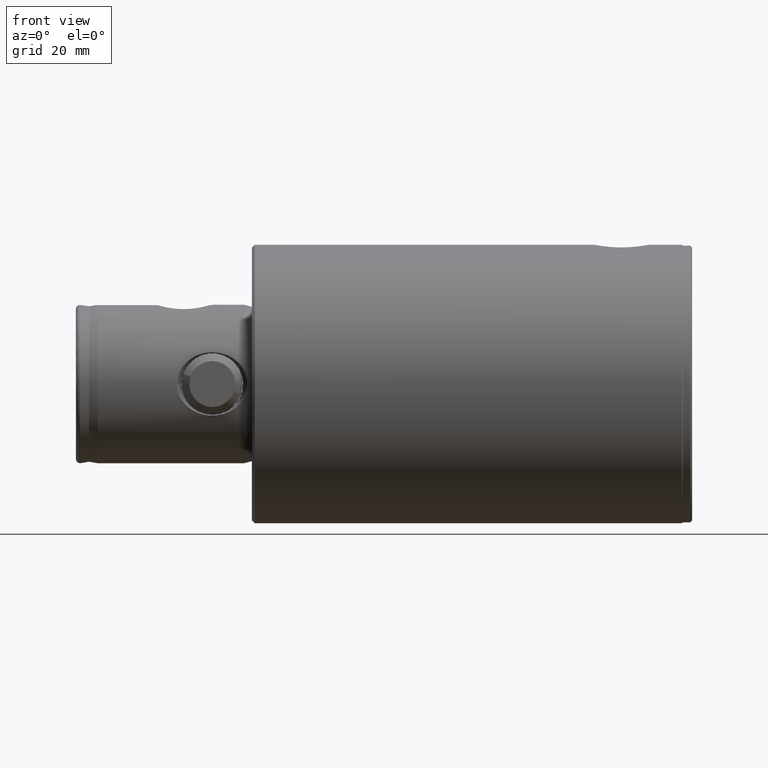
[diagram: clean part render]
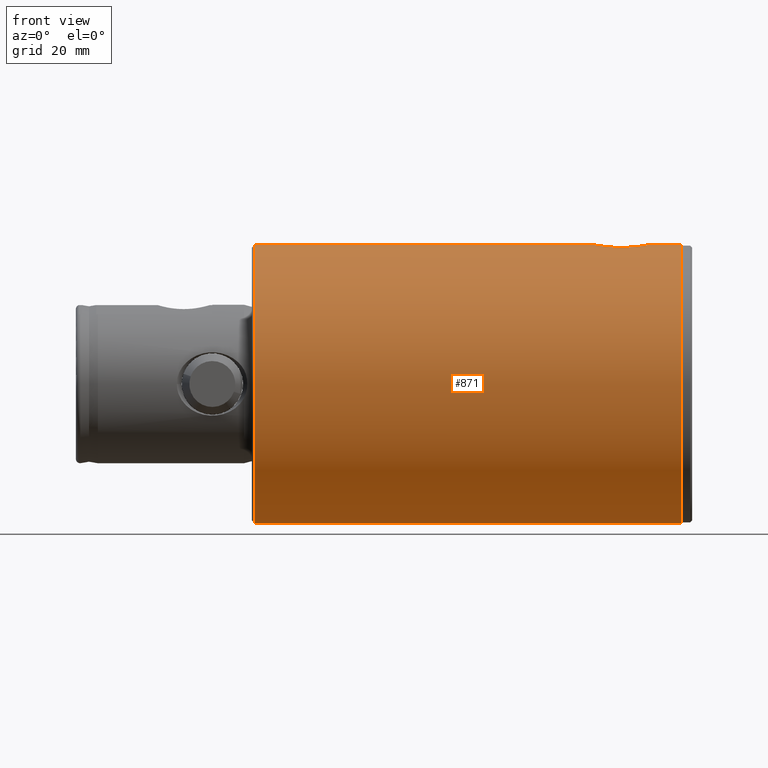
[diagram: same view with one face highlighted and labeled with its STEP entity id]
A machine part, front view. The second image highlights one B-rep face of the part: STEP entity #871.
In plain terms, the highlighted cylindrical surface (partial cylindrical patch) has radius 31.635 mm, axis along (1, 0, -0).
Its self-contained STEP definition (entity closure, byte-faithful):
#169 = CARTESIAN_POINT ( 'NONE',  ( 31.63500000000000500, 3.874170149102652900E-015, 100.0000000000000000 ) ) ;
#171 = VERTEX_POINT ( 'NONE', #1270 ) ;
#215 = CARTESIAN_POINT ( 'NONE',  ( 31.25609711018817500, -4.886870379722262600, 12.29441295156284400 ) ) ;
#228 = CARTESIAN_POINT ( 'NONE',  ( 31.07006094528549800, -5.952392331260933000, 17.64798982543387500 ) ) ;
#251 = EDGE_CURVE ( 'NONE', #171, #3950, #691, .T. ) ;
#279 = CARTESIAN_POINT ( 'NONE',  ( 31.37439714490501100, -4.062481795231411400, 20.68489261969218900 ) ) ;
#295 = CARTESIAN_POINT ( 'NONE',  ( 31.63500000000000500, 3.874170848840997900E-015, 22.19999999999999900 ) ) ;
#347 = CARTESIAN_POINT ( 'NONE',  ( 31.46765019519722600, -3.253952408386179900, 21.27248445754228000 ) ) ;
#385 = ORIENTED_EDGE ( 'NONE', *, *, #4406, .T. ) ;
#457 = VERTEX_POINT ( 'NONE', #3631 ) ;
#620 = CARTESIAN_POINT ( 'NONE',  ( 31.13476887076352600, -5.604066680910715800, 18.59119515908194100 ) ) ;
#691 = B_SPLINE_CURVE_WITH_KNOTS ( 'NONE', 3,
 ( #4341, #4039, #3338, #4431, #1361, #4491, #4057, #3298, #2964, #4445, #2145, #2192, #215, #4836, #2533, #2916, #2588, #3313, #991, #1774, #4457, #4854, #2549, #228, #2933, #620, #3324, #1789, #3420, #3407, #1874, #279, #4968, #347, #2281, #2229, #2651, #4920, #1477, #4561, #2669, #2245, #2213, #295 ),
 .UNSPECIFIED., .F., .F.,
 ( 4, 2, 2, 2, 2, 2, 2, 2, 2, 2, 2, 2, 2, 2, 2, 2, 2, 2, 2, 2, 2, 4 ),
 ( 8.025716114139253500E-019, 0.001204603437407816200, 0.001806905156111723300, 0.002409206874815630600, 0.003613810312223445300, 0.004818413749631259500, 0.006023017187039075500, 0.007227620624446889700, 0.007829922343150797300, 0.008432224061854704000, 0.009636827499262513900, 0.01084143093667032400, 0.01204603437407813400, 0.01264833609278203900, 0.01325063781148594500, 0.01445524124889375200, 0.01565984468630156000, 0.01626214640500546800, 0.01686444812370937700, 0.01806905156111719400, 0.01867135327982110500, 0.01927365499852501400 ),
 .UNSPECIFIED. ) ;
#860 = DIRECTION ( 'NONE',  ( -1.000000000000000000, 0.0000000000000000000, 0.0000000000000000000 ) ) ;
#871 = ADVANCED_FACE ( 'NONE', ( #4331 ), #3613, .T. ) ;
#881 = EDGE_CURVE ( 'NONE', #1006, #457, #4399, .T. ) ;
#922 = CARTESIAN_POINT ( 'NONE',  ( 0.0000000000000000000, 0.0000000000000000000, 99.36500000000000900 ) ) ;
#991 = CARTESIAN_POINT ( 'NONE',  ( 31.06238335323845600, -5.991927037956066300, 14.64988679874739800 ) ) ;
#1006 = VERTEX_POINT ( 'NONE', #3855 ) ;
#1162 = ORIENTED_EDGE ( 'NONE', *, *, #251, .T. ) ;
#1216 = VECTOR ( 'NONE', #2118, 1000.000000000000000 ) ;
#1230 = CARTESIAN_POINT ( 'NONE',  ( 0.0000000000000000000, 0.0000000000000000000, 100.0000000000000000 ) ) ;
#1270 = CARTESIAN_POINT ( 'NONE',  ( 31.63500000000000500, 5.340185186912870700E-016, 9.900000000000000400 ) ) ;
#1361 = CARTESIAN_POINT ( 'NONE',  ( 31.59543492066755400, -1.593505913445418400, 10.10659071127523800 ) ) ;
#1477 = CARTESIAN_POINT ( 'NONE',  ( 31.59696258510547700, -1.600493870638747500, 22.00175022956920800 ) ) ;
#1563 = CARTESIAN_POINT ( 'NONE',  ( -31.63500000000000500, 0.0000000000000000000, 100.0000000000000000 ) ) ;
#1630 = AXIS2_PLACEMENT_3D ( 'NONE', #3222, #4371, #2241 ) ;
#1637 = DIRECTION ( 'NONE',  ( 0.0000000000000000000, 0.0000000000000000000, -1.000000000000000000 ) ) ;
#1774 = CARTESIAN_POINT ( 'NONE',  ( 31.03933184757990600, -6.110613741904253400, 15.24568282668217400 ) ) ;
#1789 = CARTESIAN_POINT ( 'NONE',  ( 31.18348704038253100, -5.326600959888283500, 19.13065036124437400 ) ) ;
#1874 = CARTESIAN_POINT ( 'NONE',  ( 31.29503887849007500, -4.634338802526856100, 20.11311355933571200 ) ) ;
#1966 = ORIENTED_EDGE ( 'NONE', *, *, #3700, .T. ) ;
#2118 = DIRECTION ( 'NONE',  ( 0.0000000000000000000, 0.0000000000000000000, -1.000000000000000000 ) ) ;
#2145 = CARTESIAN_POINT ( 'NONE',  ( 31.37379658249251300, -4.066900014080239600, 11.41934727300112200 ) ) ;
#2192 = CARTESIAN_POINT ( 'NONE',  ( 31.29525941347940300, -4.632658628387614100, 11.98538508153431800 ) ) ;
#2213 = CARTESIAN_POINT ( 'NONE',  ( 31.63499999999999800, -0.2009505536041552900, 22.20000000000000300 ) ) ;
#2229 = CARTESIAN_POINT ( 'NONE',  ( 31.51787815108326300, -2.725542977868396400, 21.56677004322249000 ) ) ;
#2241 = DIRECTION ( 'NONE',  ( 1.000000000000000000, 0.0000000000000000000, 0.0000000000000000000 ) ) ;
#2245 = CARTESIAN_POINT ( 'NONE',  ( 31.63308556009322800, -0.4023440089630430600, 22.19017583239642400 ) ) ;
#2281 = CARTESIAN_POINT ( 'NONE',  ( 31.48503807696849300, -3.081818450620238600, 21.37594886113464900 ) ) ;
#2503 = VECTOR ( 'NONE', #3083, 1000.000000000000000 ) ;
#2533 = CARTESIAN_POINT ( 'NONE',  ( 31.14886242980077900, -5.526837676816006400, 13.32293095349614900 ) ) ;
#2549 = CARTESIAN_POINT ( 'NONE',  ( 31.03947014768490200, -6.109906264419069400, 16.85844999069621200 ) ) ;
#2588 = CARTESIAN_POINT ( 'NONE',  ( 31.09417945302777800, -5.824842870027199000, 14.06649246427985000 ) ) ;
#2608 = CARTESIAN_POINT ( 'NONE',  ( -31.63500000000000500, 0.0000000000000000000, 99.36500000000000900 ) ) ;
#2651 = CARTESIAN_POINT ( 'NONE',  ( 31.53328817192267800, -2.541595959133240400, 21.65386357896827400 ) ) ;
#2669 = CARTESIAN_POINT ( 'NONE',  ( 31.62537399128934000, -0.8060413542789127700, 22.15032272010963500 ) ) ;
#2837 = AXIS2_PLACEMENT_3D ( 'NONE', #922, #3283, #3265 ) ;
#2916 = CARTESIAN_POINT ( 'NONE',  ( 31.10684208921751900, -5.757055265551832300, 13.87769713392675900 ) ) ;
#2933 = CARTESIAN_POINT ( 'NONE',  ( 31.09244529378339200, -5.835902214133160000, 18.03184009183793500 ) ) ;
#2964 = CARTESIAN_POINT ( 'NONE',  ( 31.48614300239824400, -3.083641083394389200, 10.71380521691460300 ) ) ;
#2996 = CARTESIAN_POINT ( 'NONE',  ( 31.63500000000000500, 3.874170149102652900E-015, 99.36500000000000900 ) ) ;
#3083 = DIRECTION ( 'NONE',  ( 0.0000000000000000000, 0.0000000000000000000, -1.000000000000000000 ) ) ;
#3222 = CARTESIAN_POINT ( 'NONE',  ( 0.0000000000000000000, 0.0000000000000000000, 2.365685424949242500 ) ) ;
#3258 = CARTESIAN_POINT ( 'NONE',  ( 31.63500000000000500, 3.874170149102652900E-015, 100.0000000000000000 ) ) ;
#3265 = DIRECTION ( 'NONE',  ( 1.000000000000000000, 0.0000000000000000000, 0.0000000000000000000 ) ) ;
#3283 = DIRECTION ( 'NONE',  ( -0.0000000000000000000, -0.0000000000000000000, -1.000000000000000000 ) ) ;
#3298 = CARTESIAN_POINT ( 'NONE',  ( 31.51912987192450500, -2.730747091259799300, 10.52479086530721600 ) ) ;
#3313 = CARTESIAN_POINT ( 'NONE',  ( 31.07196948833892900, -5.942179939494876900, 14.45200307527518500 ) ) ;
#3323 = LINE ( 'NONE', #3258, #1216 ) ;
#3324 = CARTESIAN_POINT ( 'NONE',  ( 31.15040210047902400, -5.516791709142182800, 18.77545292970873800 ) ) ;
#3338 = CARTESIAN_POINT ( 'NONE',  ( 31.62713939424492800, -0.8077787179375980300, 9.940077896677243200 ) ) ;
#3407 = CARTESIAN_POINT ( 'NONE',  ( 31.25563113712986800, -4.889738710152639300, 19.80140497505248800 ) ) ;
#3420 = CARTESIAN_POINT ( 'NONE',  ( 31.20099893783314100, -5.223369567607385000, 19.30252691692113100 ) ) ;
#3613 = CYLINDRICAL_SURFACE ( 'NONE', #3917, 31.63500000000000500 ) ;
#3631 = CARTESIAN_POINT ( 'NONE',  ( 31.63500000000000500, 3.874170149102652900E-015, 2.365685424949242500 ) ) ;
#3648 = ORIENTED_EDGE ( 'NONE', *, *, #4877, .F. ) ;
#3689 = ORIENTED_EDGE ( 'NONE', *, *, #881, .T. ) ;
#3700 = EDGE_CURVE ( 'NONE', #4672, #1006, #3863, .T. ) ;
#3703 = VERTEX_POINT ( 'NONE', #2996 ) ;
#3730 = CARTESIAN_POINT ( 'NONE',  ( 31.63500000000000500, 3.874170848840997900E-015, 22.19999999999999900 ) ) ;
#3793 = CIRCLE ( 'NONE', #2837, 31.63500000000000500 ) ;
#3855 = CARTESIAN_POINT ( 'NONE',  ( -31.63500000000000500, 0.0000000000000000000, 2.365685424949242500 ) ) ;
#3863 = LINE ( 'NONE', #1563, #2503 ) ;
#3917 = AXIS2_PLACEMENT_3D ( 'NONE', #1230, #1637, #860 ) ;
#3950 = VERTEX_POINT ( 'NONE', #3730 ) ;
#4039 = CARTESIAN_POINT ( 'NONE',  ( 31.63500000000000500, -0.4073891727682836800, 9.900000000000002100 ) ) ;
#4057 = CARTESIAN_POINT ( 'NONE',  ( 31.56086950778205100, -2.172456340797518100, 10.29295758553424100 ) ) ;
#4093 = DIRECTION ( 'NONE',  ( 0.0000000000000000000, 0.0000000000000000000, -1.000000000000000000 ) ) ;
#4103 = ORIENTED_EDGE ( 'NONE', *, *, #4753, .F. ) ;
#4248 = EDGE_LOOP ( 'NONE', ( #4103, #385, #1966, #3689, #3648, #1162 ) ) ;
#4271 = VECTOR ( 'NONE', #4093, 1000.000000000000000 ) ;
#4331 = FACE_OUTER_BOUND ( 'NONE', #4248, .T. ) ;
#4341 = CARTESIAN_POINT ( 'NONE',  ( 31.63500000000000500, 5.340185186912870700E-016, 9.900000000000000400 ) ) ;
#4371 = DIRECTION ( 'NONE',  ( 0.0000000000000000000, 0.0000000000000000000, 1.000000000000000000 ) ) ;
#4399 = CIRCLE ( 'NONE', #1630, 31.63500000000000500 ) ;
#4406 = EDGE_CURVE ( 'NONE', #3703, #4672, #3793, .T. ) ;
#4431 = CARTESIAN_POINT ( 'NONE',  ( 31.60469406219895600, -1.398336570659457900, 10.05771800758570900 ) ) ;
#4445 = CARTESIAN_POINT ( 'NONE',  ( 31.41357110796464600, -3.751478874193281400, 11.16019189019578700 ) ) ;
#4457 = CARTESIAN_POINT ( 'NONE',  ( 31.03147854516226200, -6.149842626175232100, 15.64540344784093600 ) ) ;
#4491 = CARTESIAN_POINT ( 'NONE',  ( 31.57354487908453700, -1.980412252729097300, 10.22408012596072900 ) ) ;
#4518 = LINE ( 'NONE', #169, #4271 ) ;
#4561 = CARTESIAN_POINT ( 'NONE',  ( 31.61956420439397100, -1.007712549706079500, 22.12022390636846900 ) ) ;
#4672 = VERTEX_POINT ( 'NONE', #2608 ) ;
#4753 = EDGE_CURVE ( 'NONE', #3703, #3950, #3323, .T. ) ;
#4836 = CARTESIAN_POINT ( 'NONE',  ( 31.18248670498846300, -5.336443718708031800, 12.96644610495335600 ) ) ;
#4854 = CARTESIAN_POINT ( 'NONE',  ( 31.03141635207525800, -6.150156437826832500, 16.44979805777167700 ) ) ;
#4877 = EDGE_CURVE ( 'NONE', #171, #457, #4518, .T. ) ;
#4920 = CARTESIAN_POINT ( 'NONE',  ( 31.57493088525199100, -1.983924495428740300, 21.88511197160051900 ) ) ;
#4968 = CARTESIAN_POINT ( 'NONE',  ( 31.41338561823084400, -3.752917442960874300, 20.93858992016836500 ) ) ;